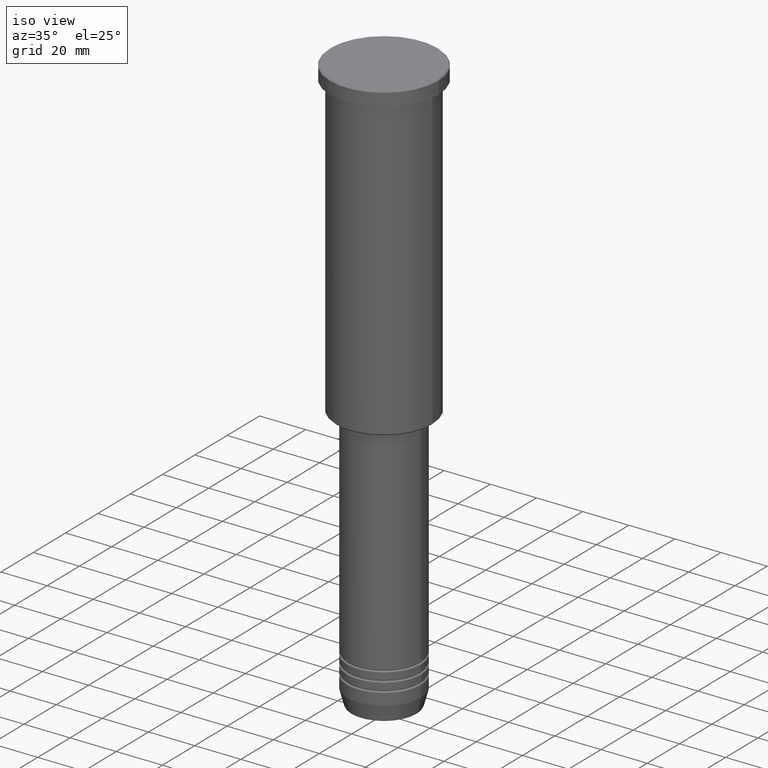
[diagram: clean part render]
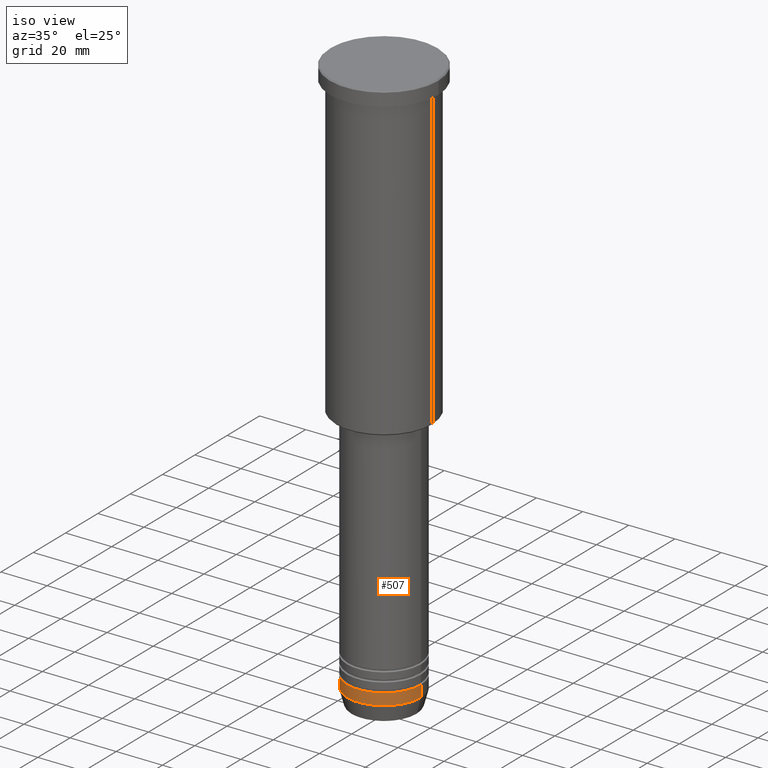
[diagram: same view with one face highlighted and labeled with its STEP entity id]
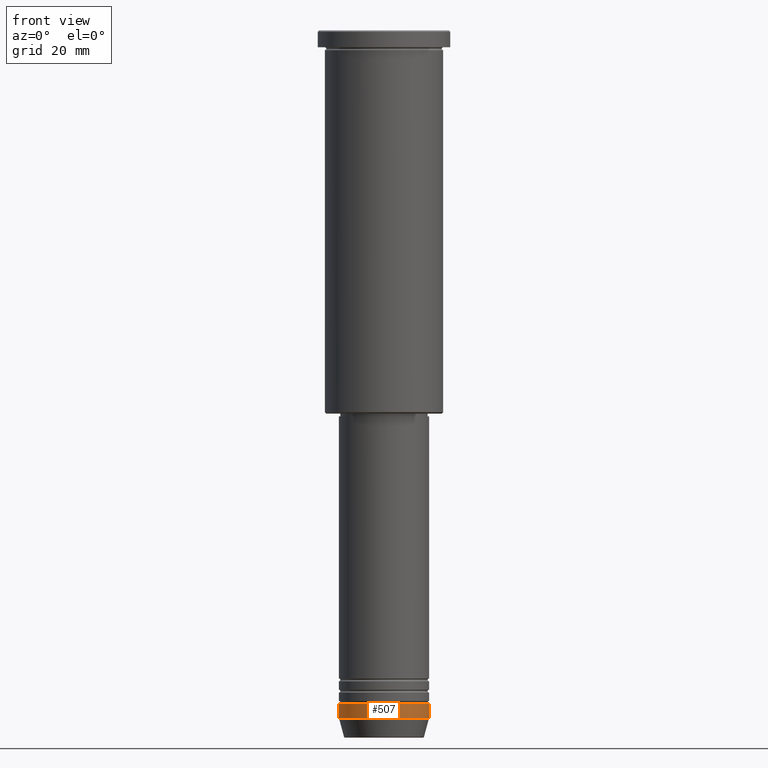
[diagram: same view with one face highlighted and labeled with its STEP entity id]
A machine part, iso view. The second image highlights one B-rep face of the part: STEP entity #507.
A second angle (front view) of the same face is appended — the face is thin or edge-on in the first view.
In plain terms, the highlighted cylindrical surface (partial cylindrical patch) has radius 16 mm, axis along (-0, -0, 1).
Its self-contained STEP definition (entity closure, byte-faithful):
#121 = VECTOR ( 'NONE', #568, 1000.000000000000000 ) ;
#127 = ORIENTED_EDGE ( 'NONE', *, *, #203, .T. ) ;
#148 = CARTESIAN_POINT ( 'NONE',  ( 16.00000000000000000, 0.000000000000000000, -244.0000000000000000 ) ) ;
#165 = DIRECTION ( 'NONE',  ( 1.000000000000000000, 0.000000000000000000, 0.000000000000000000 ) ) ;
#199 = VERTEX_POINT ( 'NONE', #835 ) ;
#203 = EDGE_CURVE ( 'NONE', #489, #471, #740, .T. ) ;
#258 = FACE_OUTER_BOUND ( 'NONE', #941, .T. ) ;
#265 = EDGE_CURVE ( 'NONE', #489, #736, #922, .T. ) ;
#267 = ORIENTED_EDGE ( 'NONE', *, *, #265, .F. ) ;
#346 = ORIENTED_EDGE ( 'NONE', *, *, #1012, .F. ) ;
#366 = CARTESIAN_POINT ( 'NONE',  ( 0.000000000000000000, 0.000000000000000000, -239.0000000000000284 ) ) ;
#408 = AXIS2_PLACEMENT_3D ( 'NONE', #917, #552, #165 ) ;
#440 = DIRECTION ( 'NONE',  ( -0.000000000000000000, -0.000000000000000000, 1.000000000000000000 ) ) ;
#463 = DIRECTION ( 'NONE',  ( -0.000000000000000000, -0.000000000000000000, 1.000000000000000000 ) ) ;
#471 = VERTEX_POINT ( 'NONE', #148 ) ;
#489 = VERTEX_POINT ( 'NONE', #905 ) ;
#507 = ADVANCED_FACE ( 'NONE', ( #258 ), #621, .T. ) ;
#552 = DIRECTION ( 'NONE',  ( -0.000000000000000000, -0.000000000000000000, 1.000000000000000000 ) ) ;
#568 = DIRECTION ( 'NONE',  ( -0.000000000000000000, -0.000000000000000000, 1.000000000000000000 ) ) ;
#621 = CYLINDRICAL_SURFACE ( 'NONE', #1007, 16.00000000000000000 ) ;
#628 = AXIS2_PLACEMENT_3D ( 'NONE', #366, #463, #1098 ) ;
#633 = DIRECTION ( 'NONE',  ( -0.000000000000000000, -0.000000000000000000, 1.000000000000000000 ) ) ;
#654 = CARTESIAN_POINT ( 'NONE',  ( 16.00000000000000000, 0.000000000000000000, 0.000000000000000000 ) ) ;
#736 = VERTEX_POINT ( 'NONE', #878 ) ;
#740 = CIRCLE ( 'NONE', #408, 16.00000000000000000 ) ;
#835 = CARTESIAN_POINT ( 'NONE',  ( 16.00000000000000000, 0.000000000000000000, -239.0000000000000284 ) ) ;
#878 = CARTESIAN_POINT ( 'NONE',  ( -16.00000000000000000, 1.959434878635765131E-15, -239.0000000000000284 ) ) ;
#889 = DIRECTION ( 'NONE',  ( 1.000000000000000000, 0.000000000000000000, 0.000000000000000000 ) ) ;
#892 = VECTOR ( 'NONE', #440, 1000.000000000000000 ) ;
#900 = CARTESIAN_POINT ( 'NONE',  ( -16.00000000000000000, 1.959434878635765131E-15, 0.000000000000000000 ) ) ;
#905 = CARTESIAN_POINT ( 'NONE',  ( -16.00000000000000000, 1.959434878635765131E-15, -244.0000000000000000 ) ) ;
#917 = CARTESIAN_POINT ( 'NONE',  ( 0.000000000000000000, 0.000000000000000000, -244.0000000000000000 ) ) ;
#922 = LINE ( 'NONE', #900, #892 ) ;
#941 = EDGE_LOOP ( 'NONE', ( #267, #127, #1082, #346 ) ) ;
#948 = CIRCLE ( 'NONE', #628, 16.00000000000000000 ) ;
#1001 = EDGE_CURVE ( 'NONE', #471, #199, #1014, .T. ) ;
#1007 = AXIS2_PLACEMENT_3D ( 'NONE', #1075, #633, #889 ) ;
#1012 = EDGE_CURVE ( 'NONE', #736, #199, #948, .T. ) ;
#1014 = LINE ( 'NONE', #654, #121 ) ;
#1075 = CARTESIAN_POINT ( 'NONE',  ( 0.000000000000000000, 0.000000000000000000, 0.000000000000000000 ) ) ;
#1082 = ORIENTED_EDGE ( 'NONE', *, *, #1001, .T. ) ;
#1098 = DIRECTION ( 'NONE',  ( 1.000000000000000000, 0.000000000000000000, 0.000000000000000000 ) ) ;